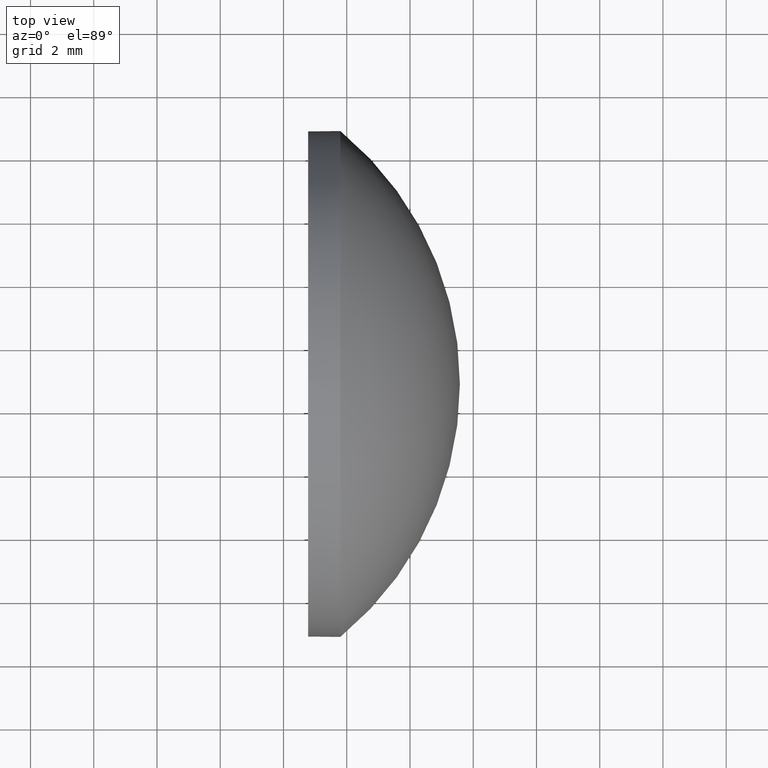
[diagram: clean part render]
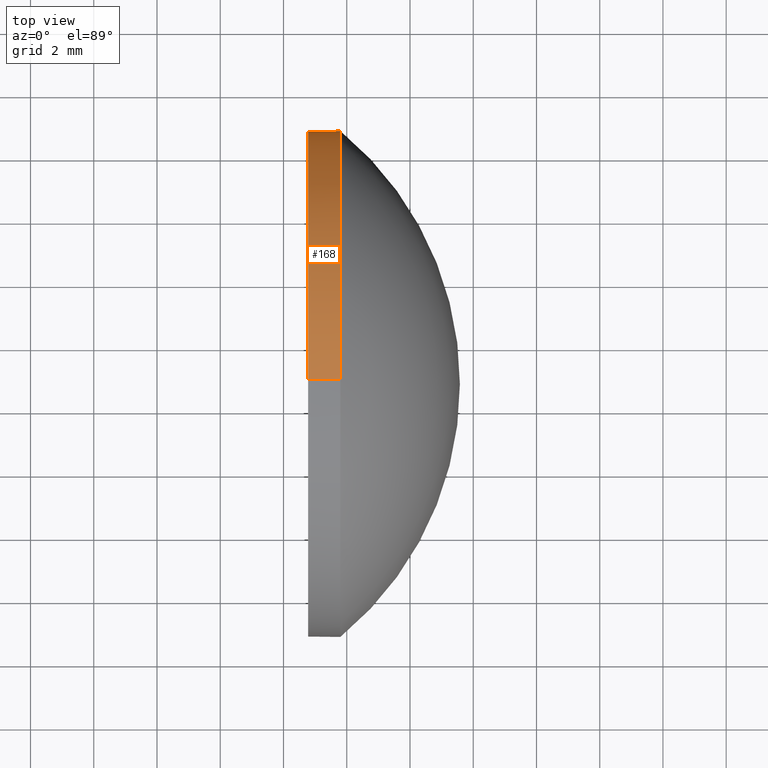
[diagram: same view with one face highlighted and labeled with its STEP entity id]
A machine part, top view. The second image highlights one B-rep face of the part: STEP entity #168.
In plain terms, the highlighted cylindrical surface (partial cylindrical patch) has radius 8 mm, axis along (-1, -0, -0).
Its self-contained STEP definition (entity closure, byte-faithful):
#1 = DIRECTION ( 'NONE',  ( -1.000000000000000000, -0.0000000000000000000, -0.0000000000000000000 ) ) ;
#2 = EDGE_CURVE ( 'NONE', #122, #46, #61, .T. ) ;
#3 = ORIENTED_EDGE ( 'NONE', *, *, #84, .T. ) ;
#14 = DIRECTION ( 'NONE',  ( 0.0000000000000000000, 0.0000000000000000000, 1.000000000000000000 ) ) ;
#19 = EDGE_CURVE ( 'NONE', #46, #107, #103, .T. ) ;
#20 = FACE_OUTER_BOUND ( 'NONE', #152, .T. ) ;
#21 = DIRECTION ( 'NONE',  ( -1.000000000000000000, -0.0000000000000000000, -0.0000000000000000000 ) ) ;
#23 = CARTESIAN_POINT ( 'NONE',  ( 351.7981997499039200, 134.8000505351327500, 0.0000000000000000000 ) ) ;
#26 = VERTEX_POINT ( 'NONE', #60 ) ;
#27 = VECTOR ( 'NONE', #80, 1000.000000000000000 ) ;
#28 = EDGE_CURVE ( 'NONE', #141, #26, #54, .T. ) ;
#31 = ORIENTED_EDGE ( 'NONE', *, *, #2, .F. ) ;
#33 = CARTESIAN_POINT ( 'NONE',  ( 332.1518566480925200, 126.8000505351327700, -7.999999999999979600 ) ) ;
#35 = CARTESIAN_POINT ( 'NONE',  ( 332.1518566480925200, 126.8000505351327700, 0.0000000000000000000 ) ) ;
#44 = DIRECTION ( 'NONE',  ( -1.000000000000000000, -0.0000000000000000000, -0.0000000000000000000 ) ) ;
#46 = VERTEX_POINT ( 'NONE', #99 ) ;
#53 = DIRECTION ( 'NONE',  ( 0.0000000000000000000, 0.0000000000000000000, 1.000000000000000000 ) ) ;
#54 = CIRCLE ( 'NONE', #79, 7.999999999999979600 ) ;
#60 = CARTESIAN_POINT ( 'NONE',  ( 351.7981997499039200, 126.8000505351327700, -7.999999999999979600 ) ) ;
#61 = LINE ( 'NONE', #129, #89 ) ;
#62 = CARTESIAN_POINT ( 'NONE',  ( 350.7781997499039300, 126.8000505351327700, 0.0000000000000000000 ) ) ;
#64 = DIRECTION ( 'NONE',  ( 0.0000000000000000000, 0.0000000000000000000, 1.000000000000000000 ) ) ;
#65 = CARTESIAN_POINT ( 'NONE',  ( 351.7981997499039200, 126.8000505351327700, 0.0000000000000000000 ) ) ;
#72 = ORIENTED_EDGE ( 'NONE', *, *, #19, .F. ) ;
#73 = ORIENTED_EDGE ( 'NONE', *, *, #28, .T. ) ;
#74 = ORIENTED_EDGE ( 'NONE', *, *, #142, .T. ) ;
#76 = DIRECTION ( 'NONE',  ( -1.000000000000000000, -0.0000000000000000000, -0.0000000000000000000 ) ) ;
#78 = CARTESIAN_POINT ( 'NONE',  ( 351.7981997499039200, 126.8000505351327700, 7.999999999999979600 ) ) ;
#79 = AXIS2_PLACEMENT_3D ( 'NONE', #163, #161, #14 ) ;
#80 = DIRECTION ( 'NONE',  ( -1.000000000000000000, -0.0000000000000000000, -0.0000000000000000000 ) ) ;
#84 = EDGE_CURVE ( 'NONE', #122, #141, #128, .T. ) ;
#89 = VECTOR ( 'NONE', #1, 1000.000000000000000 ) ;
#91 = LINE ( 'NONE', #33, #27 ) ;
#96 = AXIS2_PLACEMENT_3D ( 'NONE', #62, #44, #143 ) ;
#99 = CARTESIAN_POINT ( 'NONE',  ( 350.7781997499039300, 126.8000505351327700, 7.999999999999979600 ) ) ;
#103 = CIRCLE ( 'NONE', #96, 7.999999999999979600 ) ;
#107 = VERTEX_POINT ( 'NONE', #164 ) ;
#122 = VERTEX_POINT ( 'NONE', #78 ) ;
#126 = AXIS2_PLACEMENT_3D ( 'NONE', #65, #21, #64 ) ;
#128 = CIRCLE ( 'NONE', #126, 7.999999999999979600 ) ;
#129 = CARTESIAN_POINT ( 'NONE',  ( 332.1518566480925200, 126.8000505351327700, 7.999999999999979600 ) ) ;
#141 = VERTEX_POINT ( 'NONE', #23 ) ;
#142 = EDGE_CURVE ( 'NONE', #26, #107, #91, .T. ) ;
#143 = DIRECTION ( 'NONE',  ( 0.0000000000000000000, 0.0000000000000000000, 1.000000000000000000 ) ) ;
#145 = AXIS2_PLACEMENT_3D ( 'NONE', #35, #76, #53 ) ;
#152 = EDGE_LOOP ( 'NONE', ( #73, #74, #72, #31, #3 ) ) ;
#159 = CYLINDRICAL_SURFACE ( 'NONE', #145, 7.999999999999979600 ) ;
#161 = DIRECTION ( 'NONE',  ( -1.000000000000000000, -0.0000000000000000000, -0.0000000000000000000 ) ) ;
#163 = CARTESIAN_POINT ( 'NONE',  ( 351.7981997499039200, 126.8000505351327700, 0.0000000000000000000 ) ) ;
#164 = CARTESIAN_POINT ( 'NONE',  ( 350.7781997499039300, 126.8000505351327700, -7.999999999999979600 ) ) ;
#168 = ADVANCED_FACE ( 'NONE', ( #20 ), #159, .T. ) ;